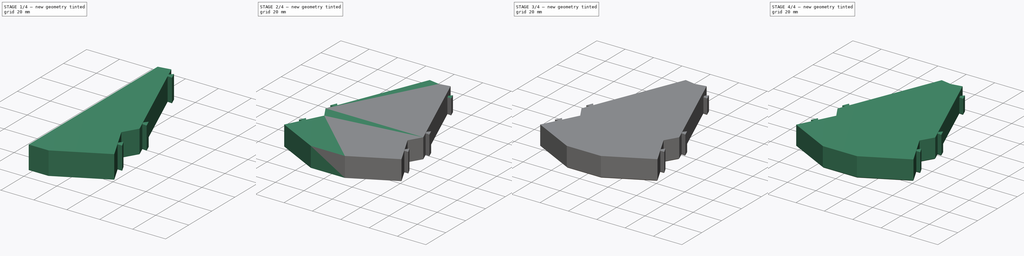
[diagram: build sequence overview — one tinted view per stage of 4, left to right]
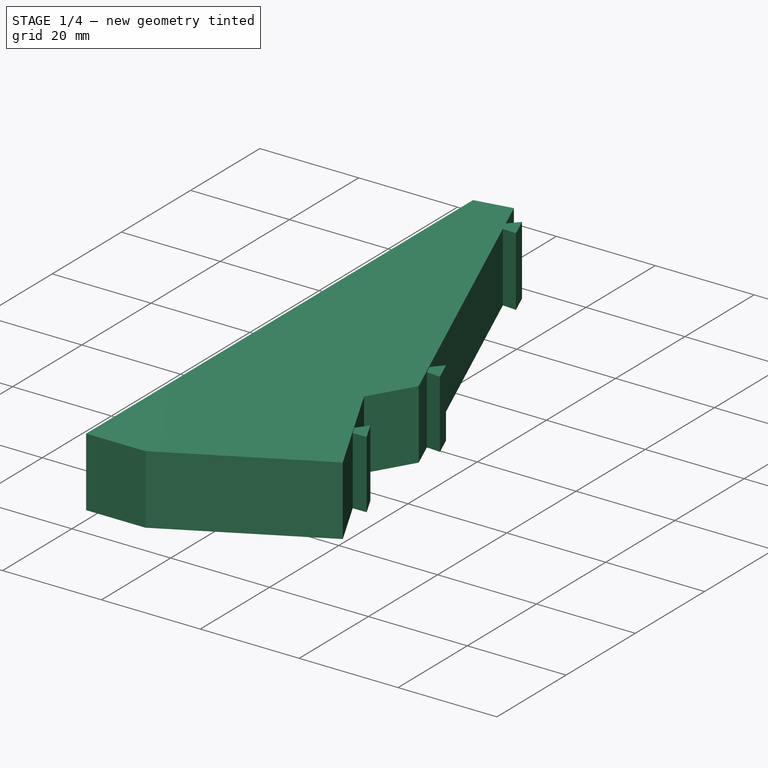
[diagram: stage 1 of 4 — iso view after this stage's code; geometry added in this stage tinted green]
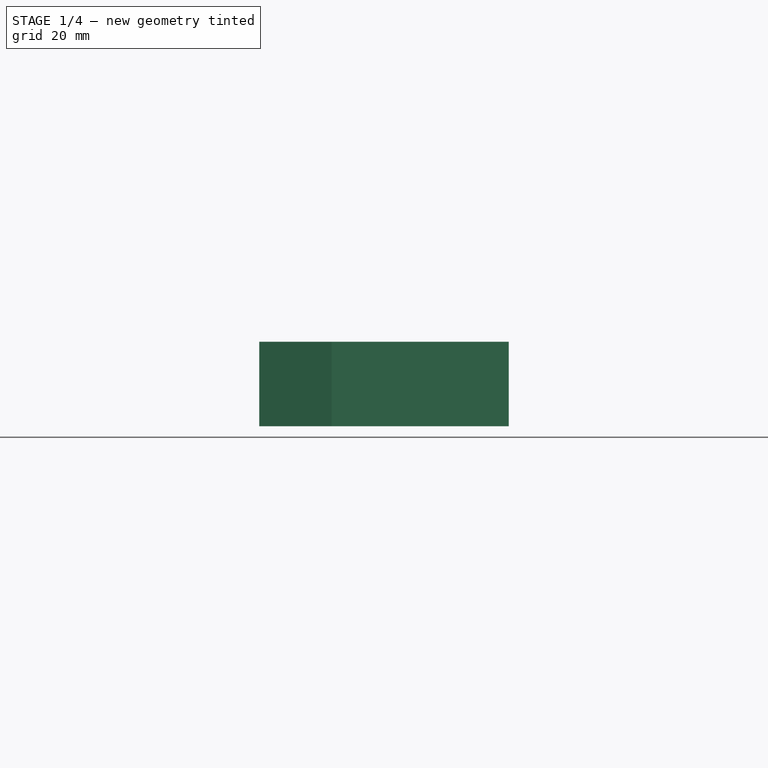
[diagram: stage 1 of 4 — front view after this stage's code; geometry added in this stage tinted green]
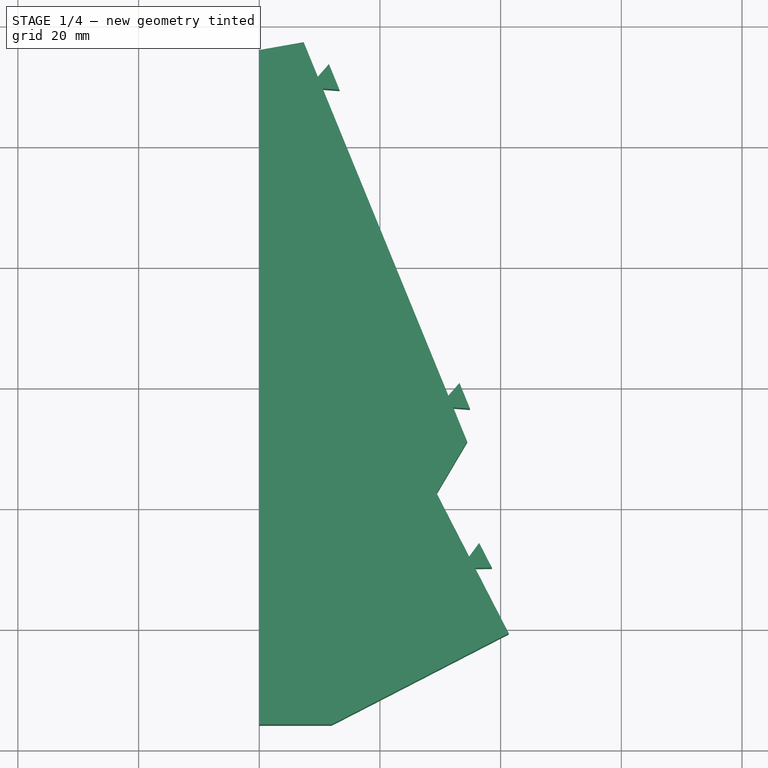
[diagram: stage 1 of 4 — top view after this stage's code; geometry added in this stage tinted green]
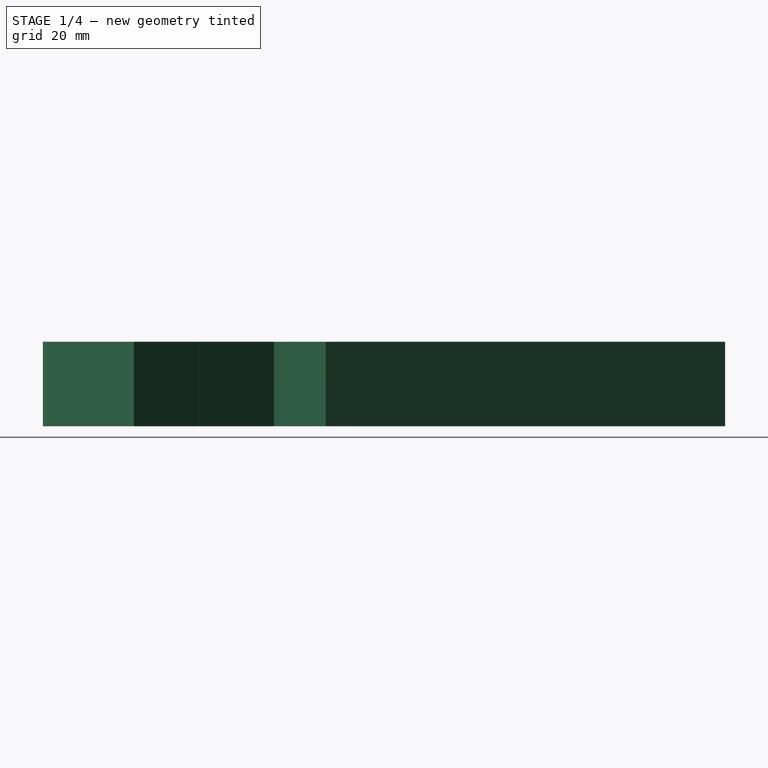
[diagram: stage 1 of 4 — right view after this stage's code; geometry added in this stage tinted green]
FCSTD DOCUMENT  (FreeCAD 1.0R39285 (Git))
Label: cinque-1.0-connector-t
License: All rights reserved
LicenseURL: https://en.wikipedia.org/wiki/All_rights_reserved
objects: Sketcher::SketchObject×6, PartDesign::Pocket×2, PartDesign::Fillet×2, PartDesign::Chamfer×2, PartDesign::Pad×1, PartDesign::Mirrored×1, PartDesign::SubtractiveLoft×1, PartDesign::Body×1
note: 39 computed .brp shape members not serialized (recipe doc carries the construction recipe); baked Part::Feature solids carry a one-line shape summary decoded from their .brp

FEATURE [Sketcher::SketchObject] Sketch021  label="Right Board"
  ArcFitTolerance = 1e-06
  AttachmentOffset = pos=(-6.74,0,0) rot=(0,0,1;0.122173rad)
  AttachmentSupport = -> [XY_Plane]
  FullyConstrained = true
  MakeInternals = false
  MapMode = 5
  Placement = pos=(-6.74,0,0) rot=(0,0,1;0.122173rad)
  sketch-geometry (35):
    g0: LineSegment StartX=16.2394 StartY=15.4165 StartZ=0 EndX=17.8054 EndY=9.6763 EndZ=0
    g1: LineSegment StartX=17.8054 StartY=9.6763 StartZ=0 EndX=19.8883 EndY=11.5402 EndZ=0
    g2: LineSegment StartX=19.8883 StartY=11.5402 StartZ=0 EndX=21.2306 EndY=6.62006 EndZ=0
    g3: LineSegment StartX=21.2306 StartY=6.62006 StartZ=0 EndX=18.4898 EndY=7.16798 EndZ=0
    g4: LineSegment StartX=18.4898 StartY=7.16798 StartZ=0 EndX=32.8352 EndY=-45.4133 EndZ=0
    g5: LineSegment StartX=32.8352 StartY=-45.4133 StartZ=0 EndX=34.9181 EndY=-43.5494 EndZ=0
    g6: LineSegment StartX=34.9181 StartY=-43.5494 StartZ=0 EndX=36.2604 EndY=-48.4695 EndZ=0
    g7: LineSegment StartX=36.2604 StartY=-48.4695 StartZ=0 EndX=33.5196 EndY=-47.9216 EndZ=0
    g8: LineSegment StartX=33.5196 StartY=-47.9216 StartZ=0 EndX=35.0856 EndY=-53.6618 EndZ=0
    g9: LineSegment StartX=35.0856 StartY=-53.6618 StartZ=0 EndX=29.0135 EndY=-61.5422 EndZ=0
    g10: LineSegment StartX=29.0135 StartY=-61.5422 StartZ=0 EndX=32.9844 EndY=-72.3026 EndZ=0
    g11: LineSegment StartX=32.9844 StartY=-72.3026 StartZ=0 EndX=34.8971 EndY=-70.2644 EndZ=0
    g12: LineSegment StartX=34.8971 StartY=-70.2644 StartZ=0 EndX=36.6627 EndY=-75.049 EndZ=0
    g13: LineSegment StartX=36.6627 StartY=-75.049 StartZ=0 EndX=33.8846 EndY=-74.7418 EndZ=0
    g14: LineSegment StartX=33.8846 StartY=-74.7418 StartZ=0 EndX=38.0217 EndY=-85.9528 EndZ=0
    g15: LineSegment StartX=38.0217 StartY=-85.9528 StartZ=0 EndX=63.9413 EndY=-76.6823 EndZ=0
    g16: LineSegment StartX=63.9413 StartY=-76.6823 StartZ=0 EndX=61.9224 EndY=-74.7493 EndZ=0
    g17: LineSegment StartX=61.9224 StartY=-74.7493 StartZ=0 EndX=66.7245 EndY=-73.0317 EndZ=0
    g18: LineSegment StartX=66.7245 StartY=-73.0317 StartZ=0 EndX=66.3895 EndY=-75.8066 EndZ=0
    g19: LineSegment StartX=66.3895 StartY=-75.8066 StartZ=0 EndX=92.3091 EndY=-66.5361 EndZ=0
    g20: LineSegment StartX=92.3091 StartY=-66.5361 StartZ=0 EndX=128.014 EndY=-51.2943 EndZ=0
    g21: LineSegment StartX=128.014 StartY=-51.2943 StartZ=0 EndX=125.883 EndY=-49.4858 EndZ=0
    g22: LineSegment StartX=125.883 StartY=-49.4858 StartZ=0 EndX=130.574 EndY=-47.4836 EndZ=0
    g23: LineSegment StartX=130.574 StartY=-47.4836 StartZ=0 EndX=130.406 EndY=-50.2736 EndZ=0
    g24: LineSegment StartX=130.406 StartY=-50.2736 StartZ=0 EndX=166.111 EndY=-35.0318 EndZ=0
    g25: LineSegment StartX=167.763 StartY=-32.1537 StartZ=0 EndX=162.807 EndY=21.9215 EndZ=0
    g26: LineSegment StartX=161.439 StartY=24.121 StartZ=0 EndX=141.847 EndY=35.9891 EndZ=0
    g27: LineSegment StartX=141.847 StartY=35.9891 StartZ=0 EndX=115.751 EndY=43.3614 EndZ=0
    g28: LineSegment StartX=115.751 StartY=43.3614 StartZ=0 EndX=95.7425 EndY=47.1481 EndZ=0
    g29: LineSegment StartX=95.7425 StartY=47.1481 StartZ=0 EndX=76.8905 EndY=43.9433 EndZ=0
    g30: LineSegment StartX=76.8905 StartY=43.9433 StartZ=0 EndX=36.0729 EndY=24.9987 EndZ=0
    g31: LineSegment StartX=36.0729 StartY=24.9987 StartZ=0 EndX=31.3759 EndY=19.3864 EndZ=0
    g32: LineSegment StartX=31.3759 StartY=19.3864 StartZ=0 EndX=16.2394 EndY=15.4165 EndZ=0
    g33: ArcOfCircle CenterX=159.666 CenterY=21.4937 CenterZ=0 NormalX=0 NormalY=0 NormalZ=1 AngleXU=0 Radius=3.17 StartAngle=0.135278 EndAngle=0.976936
    g34: ArcOfCircle CenterX=164.363 CenterY=-32.1153 CenterZ=0 NormalX=0 NormalY=0 NormalZ=1 AngleXU=0 Radius=3.4 StartAngle=5.25178 EndAngle=6.27191
  constraints (72):
    c: Coincident(g-38,g0)
    c: Coincident(g0,g-4)
    c: Coincident(g0,g1)
    c: Coincident(g1,g-5)
    c: Coincident(g1,g2)
    c: Coincident(g2,g-6)
    c: Coincident(g2,g3)
    c: Coincident(g3,g-7)
    c: Coincident(g3,g4)
    c: Coincident(g4,g-8)
    c: Coincident(g4,g5)
    c: Coincident(g5,g-9)
    c: Coincident(g5,g6)
    c: Coincident(g6,g-10)
    c: Coincident(g6,g7)
    c: Coincident(g7,g-11)
    c: Coincident(g7,g8)
    c: Coincident(g8,g-12)
    c: Coincident(g8,g9)
    c: Coincident(g9,g-13)
    c: Coincident(g9,g10)
    c: Coincident(g10,g-13)
    c: Coincident(g10,g11)
    c: Coincident(g11,g-14)
    c: Coincident(g11,g12)
    c: Coincident(g12,g-16)
    c: Coincident(g12,g13)
    c: Coincident(g13,g-17)
    c: Coincident(g13,g14)
    c: Coincident(g14,g-18)
    c: Coincident(g14,g15)
    c: Coincident(g15,g-19)
    c: Coincident(g15,g16)
    c: Coincident(g16,g-20)
    c: Coincident(g16,g17)
    c: Coincident(g17,g-21)
    c: Coincident(g17,g18)
    c: Coincident(g18,g-22)
    c: Coincident(g18,g19)
    c: Coincident(g19,g-23)
    c: Coincident(g19,g20)
    c: Coincident(g20,g-24)
    c: Coincident(g20,g21)
    c: Coincident(g21,g-25)
    c: Coincident(g21,g22)
    c: Coincident(g22,g-26)
    c: Coincident(g22,g23)
    c: Coincident(g23,g-27)
    c: Coincident(g23,g24)
    c: Coincident(g24,g-28)
    c: Coincident(g-29,g25)
    c: Coincident(g25,g-31)
    c: Coincident(g-32,g26)
    c: Coincident(g26,g-33)
    c: Coincident(g26,g27)
    c: Coincident(g27,g-34)
    c: Coincident(g27,g28)
    c: Coincident(g28,g-35)
    c: Coincident(g28,g29)
    c: Coincident(g29,g-36)
    c: Coincident(g29,g30)
    c: Coincident(g30,g-37)
    c: Coincident(g30,g31)
    c: Coincident(g31,g-38)
    c: Coincident(g31,g32)
    c: Coincident(g32,g0)
    c: Coincident(g33,g-31)
    c: Coincident(g33,g26)
    c: Coincident(g34,g-28)
    c: Coincident(g34,g25)
    c: Distance(g25,g34) = 3.32
    c: Distance(g26,g33) = 2.59
FEATURE [Sketcher::SketchObject] Sketch  label="Housing"
  ArcFitTolerance = 1e-06
  AttachmentSupport = -> [XY_Plane]
  ExternalGeometry = -> [Sketch021]
  FullyConstrained = true
  MakeInternals = false
  MapMode = 5
  sketch-geometry (21):
    g0: LineSegment StartX=0 StartY=15.926 StartZ=0 EndX=7.36069 EndY=17.2238 EndZ=0
    g1: LineSegment StartX=7.36069 StartY=17.2238 StartZ=0 EndX=9.70658 EndY=11.4927 EndZ=0
    g2: LineSegment StartX=9.70658 StartY=11.4927 StartZ=0 EndX=11.5467 EndY=13.5965 EndZ=0
    g3: LineSegment StartX=11.5467 StartY=13.5965 StartZ=0 EndX=13.2948 EndY=9.32587 EndZ=0
    g4: LineSegment StartX=13.2948 StartY=9.32587 StartZ=0 EndX=10.5076 EndY=9.53568 EndZ=0
    g5: LineSegment StartX=10.5076 StartY=9.53568 StartZ=0 EndX=31.3381 EndY=-41.3546 EndZ=0
    g6: LineSegment StartX=31.3381 StartY=-41.3546 StartZ=0 EndX=33.1783 EndY=-39.2508 EndZ=0
    g7: LineSegment StartX=33.1783 StartY=-39.2508 StartZ=0 EndX=34.9263 EndY=-43.5214 EndZ=0
    g8: LineSegment StartX=34.9263 StartY=-43.5214 StartZ=0 EndX=32.1391 EndY=-43.3116 EndZ=0
    g9: LineSegment StartX=32.1391 StartY=-43.3116 StartZ=0 EndX=34.4568 EndY=-48.9738 EndZ=0
    g10: LineSegment StartX=34.4568 StartY=-48.9738 StartZ=0 EndX=29.386 EndY=-57.5426 EndZ=0
    g11: LineSegment StartX=29.386 StartY=-57.5426 StartZ=0 EndX=34.7878 EndY=-68.0283 EndZ=0
    g12: LineSegment StartX=34.7878 StartY=-68.0283 StartZ=0 EndX=36.4378 EndY=-65.7722 EndZ=0
    g13: LineSegment StartX=36.4378 StartY=-65.7722 StartZ=0 EndX=38.5511 EndY=-69.8745 EndZ=0
    g14: LineSegment StartX=38.5511 StartY=-69.8745 StartZ=0 EndX=35.7562 EndY=-69.9082 EndZ=0
    g15: LineSegment StartX=35.7562 StartY=-69.9082 StartZ=0 EndX=41.34 EndY=-80.7472 EndZ=0
    g16: LineSegment StartX=41.34 StartY=-80.7472 StartZ=0 EndX=12 EndY=-95.8618 EndZ=0
    g17: LineSegment StartX=12 StartY=-95.8618 StartZ=0 EndX=0 EndY=-95.8618 EndZ=0
    g18: LineSegment StartX=0 StartY=-95.8618 StartZ=0 EndX=0 EndY=15.926 EndZ=0
    g19: LineSegment [constr] StartX=7.49951 StartY=17.2807 StartZ=0 EndX=6.57404 EndY=16.9019 EndZ=0
    g20: LineSegment [constr] StartX=41.4733 StartY=-80.6785 StartZ=0 EndX=40.5844 EndY=-81.1364 EndZ=0
  constraints (63):
    c: PointOnObject(g0,g-2)
    c: Coincident(g0,g1)
    c: Coincident(g1,g2)
    c: Coincident(g2,g3)
    c: Coincident(g3,g4)
    c: Coincident(g4,g5)
    c: Coincident(g5,g6)
    c: Coincident(g6,g7)
    c: Coincident(g7,g8)
    c: Coincident(g8,g9)
    c: Coincident(g9,g10)
    c: Coincident(g10,g11)
    c: Coincident(g11,g12)
    c: Coincident(g12,g13)
    c: Coincident(g13,g14)
    c: Coincident(g14,g15)
    c: Coincident(g15,g16)
    c: Coincident(g16,g17)
    c: PointOnObject(g17,g-2)
    c: Coincident(g17,g18)
    c: Coincident(g18,g0)
    c: Parallel(g-4,g1)
    c: Parallel(g2,g-5)
    c: Parallel(g-6,g3)
    c: Parallel(g4,g-7)
    c: Parallel(g-8,g5)
    c: Distance(g-4,g1) = 0.15
    c: Distance(g-5,g2) = 0.15
    c: Distance(g-6,g3) = 0.15
    c: Distance(g-7,g4) = 0.15
    c: Distance(g-8,g5) = 0.15
    c: Parallel(g-9,g6)
    c: Parallel(g7,g-10)
    c: Parallel(g8,g-11)
    c: Parallel(g9,g-12)
    c: Distance(g-9,g6) = 0.15
    c: Distance(g-10,g7) = 0.15
    c: Distance(g-11,g8) = 0.15
    c: Distance(g-12,g9) = 0.15
    c: Parallel(g10,g-13)
    c: Parallel(g11,g-14)
    c: Distance(g10,g-13) = 0.15
    c: Distance(g-14,g11) = 0.15
    c: Parallel(g12,g-15)
    c: Parallel(g13,g-16)
    c: Parallel(g14,g-17)
    c: Parallel(g15,g-18)
    c: Distance(g-15,g12) = 0.15
    c: Distance(g-17,g14) = 0.15
    c: Distance(g-16,g13) = 0.15
    c: Distance(g-18,g15) = 0.15
    c: Distance(g19) = 1
    c: Coincident(g19,g-4)
    c: Perpendicular(g-4,g19)
    c: PointOnObject(g0,g19)
    c: Angle(g-2,g0) = 1.74533
    c: Coincident(g20,g-19)
    c: Perpendicular(g20,g-18)
    c: PointOnObject(g15,g20)
    c: Horizontal(g17)
    c: DistanceX(g17,g17) = 12
    c: Perpendicular(g15,g16)
    c: Distance(g20,g20) = 1
FEATURE [PartDesign::Pad] Pad
  Direction = (0,0,1)
  Length = 14
  Length2 = 10
  Profile = -> Sketch
  ReferenceAxis = -> Sketch [N_Axis]
  Refine = true
  Suppressed = false
  Type = 0
FEATURE [Sketcher::SketchObject] Sketch022  label="Dovetails Tall"
  ArcFitTolerance = 1e-06
  AttachmentOffset = pos=(0,0,13.75) rot=(0,0,1;0rad)
  AttachmentSupport = -> [XY_Plane]
  FullyConstrained = true
  MakeInternals = false
  MapMode = 5
  Placement = pos=(0,0,13.75) rot=(0,0,1;0rad)
  sketch-geometry (8):
    g0: LineSegment StartX=31.3381 StartY=-41.3546 StartZ=0 EndX=33.1783 EndY=-39.2508 EndZ=0
    g1: LineSegment StartX=33.1783 StartY=-39.2508 StartZ=0 EndX=34.9263 EndY=-43.5214 EndZ=0
    g2: LineSegment StartX=34.9263 StartY=-43.5214 StartZ=0 EndX=32.1391 EndY=-43.3116 EndZ=0
    g3: LineSegment StartX=32.1391 StartY=-43.3116 StartZ=0 EndX=31.3381 EndY=-41.3546 EndZ=0
    g4: LineSegment StartX=34.7878 StartY=-68.0283 StartZ=0 EndX=36.4378 EndY=-65.7722 EndZ=0
    g5: LineSegment StartX=36.4378 StartY=-65.7722 StartZ=0 EndX=38.5511 EndY=-69.8745 EndZ=0
    g6: LineSegment StartX=38.5511 StartY=-69.8745 StartZ=0 EndX=35.7562 EndY=-69.9082 EndZ=0
    g7: LineSegment StartX=35.7562 StartY=-69.9082 StartZ=0 EndX=34.7878 EndY=-68.0283 EndZ=0
  constraints (16):
    c: Coincident(g-5,g0)
    c: Coincident(g0,g-5)
    c: Coincident(g0,g1)
    c: Coincident(g1,g-6)
    c: Coincident(g1,g2)
    c: Coincident(g2,g-6)
    c: Coincident(g2,g3)
    c: Coincident(g3,g0)
    c: Coincident(g-3,g4)
    c: Coincident(g4,g-3)
    c: Coincident(g4,g5)
    c: Coincident(g5,g-4)
    c: Coincident(g5,g6)
    c: Coincident(g6,g-4)
    c: Coincident(g6,g7)
    c: Coincident(g7,g4)
FEATURE [PartDesign::Pocket] Pocket
  BaseFeature = -> Pad
  Direction = (0,0,-1)
  Length = 5
  Length2 = 5
  Profile = -> Sketch022
  ReferenceAxis = -> Sketch022 [N_Axis]
  Refine = true
  Reversed = true
  Suppressed = false
  Type = 1
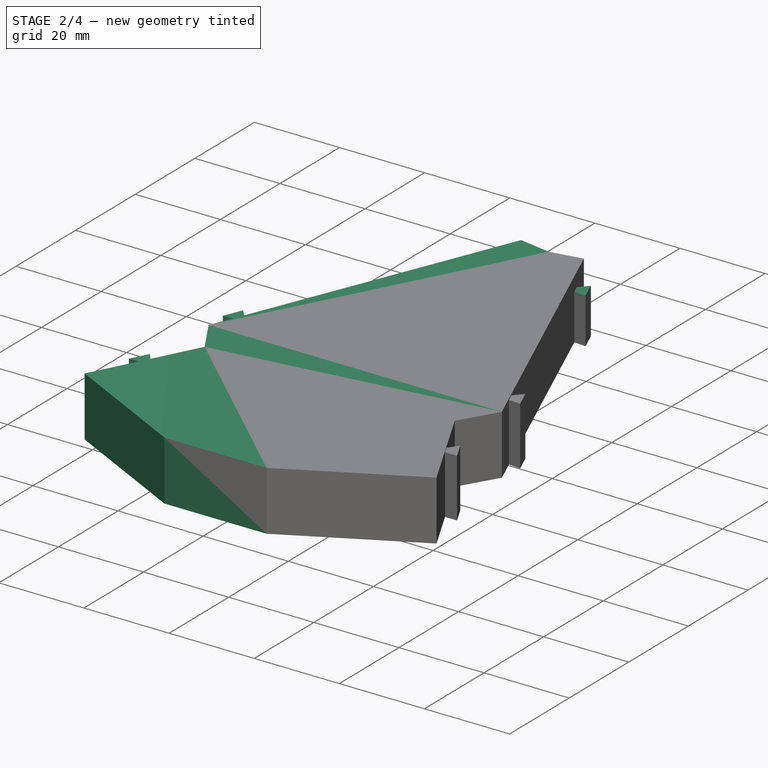
[diagram: stage 2 of 4 — iso view after this stage's code; geometry added in this stage tinted green]
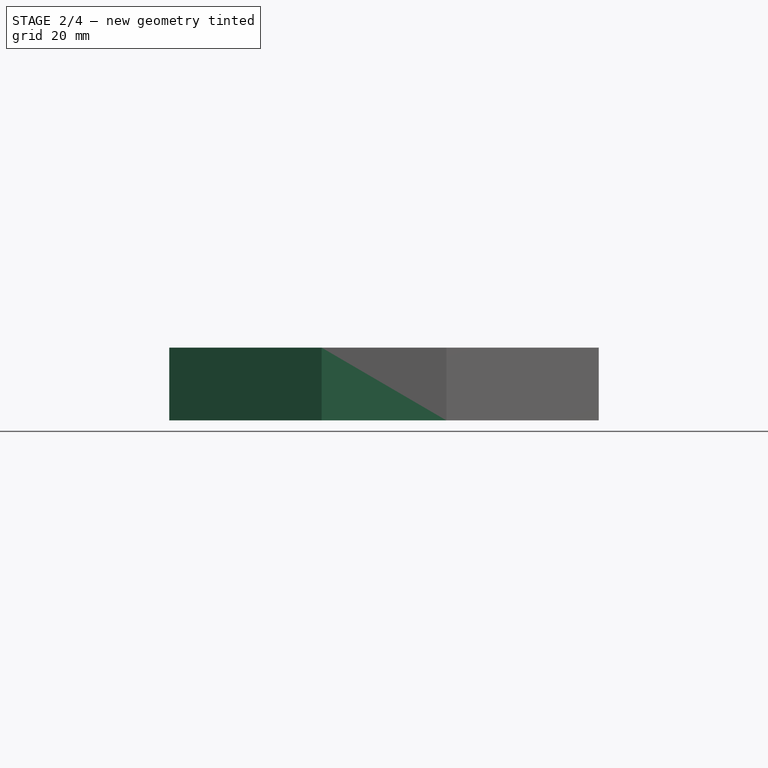
[diagram: stage 2 of 4 — front view after this stage's code; geometry added in this stage tinted green]
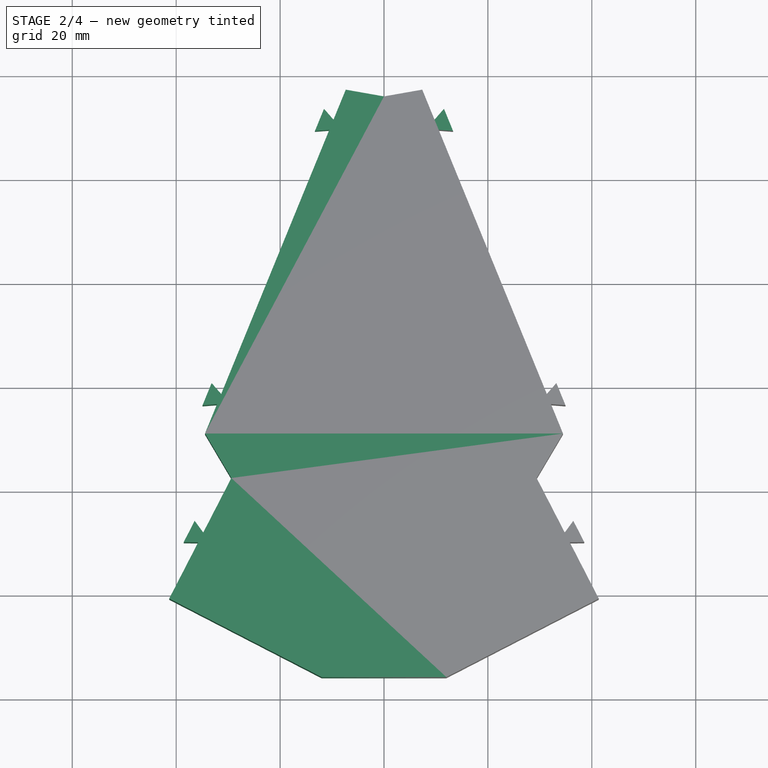
[diagram: stage 2 of 4 — top view after this stage's code; geometry added in this stage tinted green]
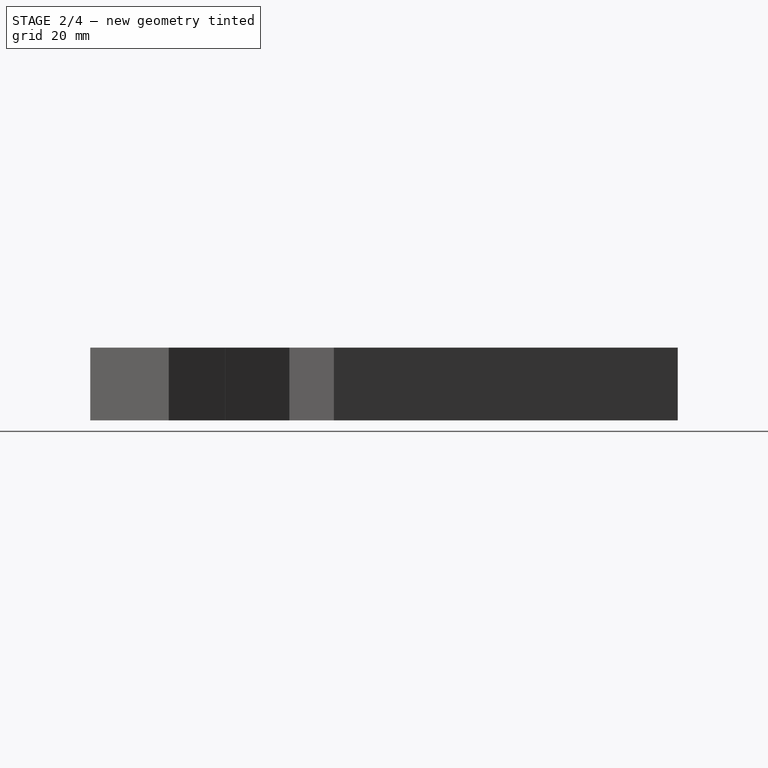
[diagram: stage 2 of 4 — right view after this stage's code; geometry added in this stage tinted green]
FEATURE [Sketcher::SketchObject] Sketch023  label="Dovetails Short"
  ArcFitTolerance = 1e-06
  AttachmentOffset = pos=(0,0,10.75) rot=(0,0,1;0rad)
  AttachmentSupport = -> [XY_Plane]
  FullyConstrained = true
  MakeInternals = false
  MapMode = 5
  Placement = pos=(0,0,10.75) rot=(0,0,1;0rad)
  sketch-geometry (4):
    g0: LineSegment StartX=9.70658 StartY=11.4927 StartZ=0 EndX=11.5467 EndY=13.5965 EndZ=0
    g1: LineSegment StartX=11.5467 StartY=13.5965 StartZ=0 EndX=13.2948 EndY=9.32587 EndZ=0
    g2: LineSegment StartX=13.2948 StartY=9.32587 StartZ=0 EndX=10.5076 EndY=9.53568 EndZ=0
    g3: LineSegment StartX=10.5076 StartY=9.53568 StartZ=0 EndX=9.70658 EndY=11.4927 EndZ=0
  constraints (8):
    c: Coincident(g-3,g0)
    c: Coincident(g0,g-3)
    c: Coincident(g0,g1)
    c: Coincident(g1,g-4)
    c: Coincident(g1,g2)
    c: Coincident(g2,g-4)
    c: Coincident(g2,g3)
    c: Coincident(g3,g0)
FEATURE [PartDesign::Pocket] Pocket001
  BaseFeature = -> Pocket
  Direction = (0,0,-1)
  Length = 5
  Length2 = 5
  Profile = -> Sketch023
  ReferenceAxis = -> Sketch023 [N_Axis]
  Refine = true
  Reversed = true
  Suppressed = false
  Type = 1
FEATURE [PartDesign::Mirrored] Mirrored
  BaseFeature = -> Pocket001
  MirrorPlane = -> YZ_Plane
  Refine = true
  Suppressed = false
  TransformMode = 1
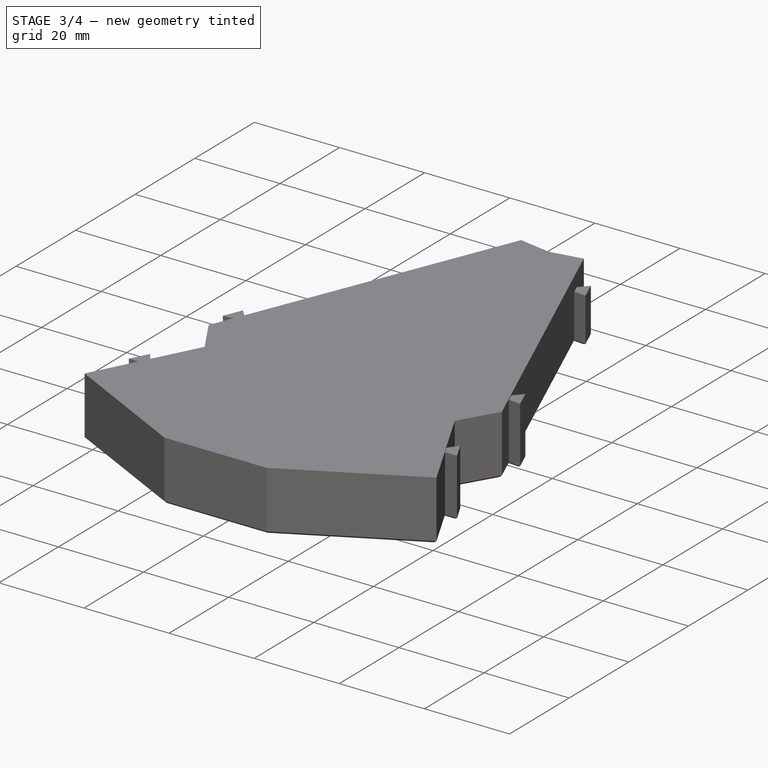
[diagram: stage 3 of 4 — iso view after this stage's code; geometry added in this stage tinted green]
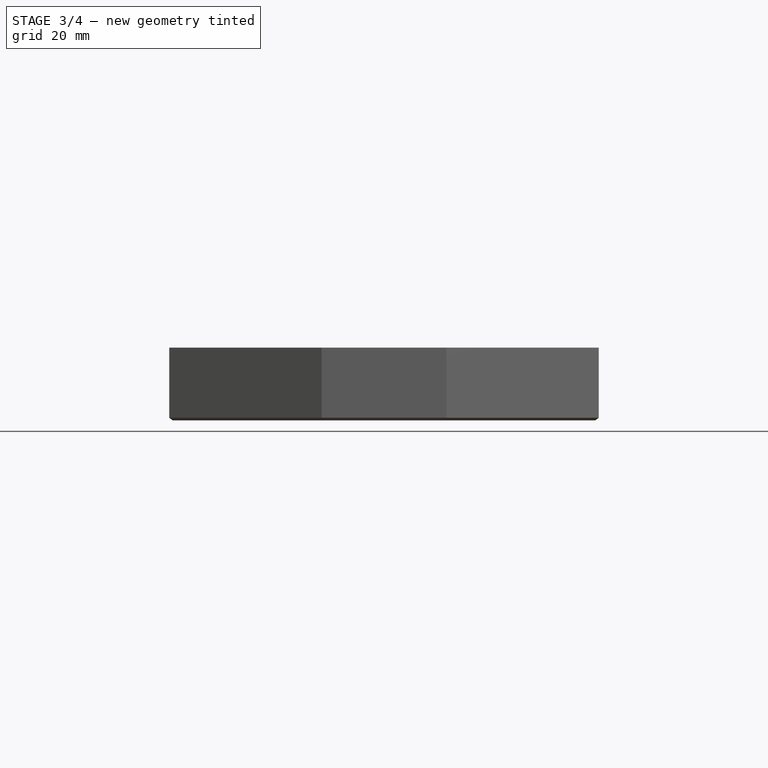
[diagram: stage 3 of 4 — front view after this stage's code; geometry added in this stage tinted green]
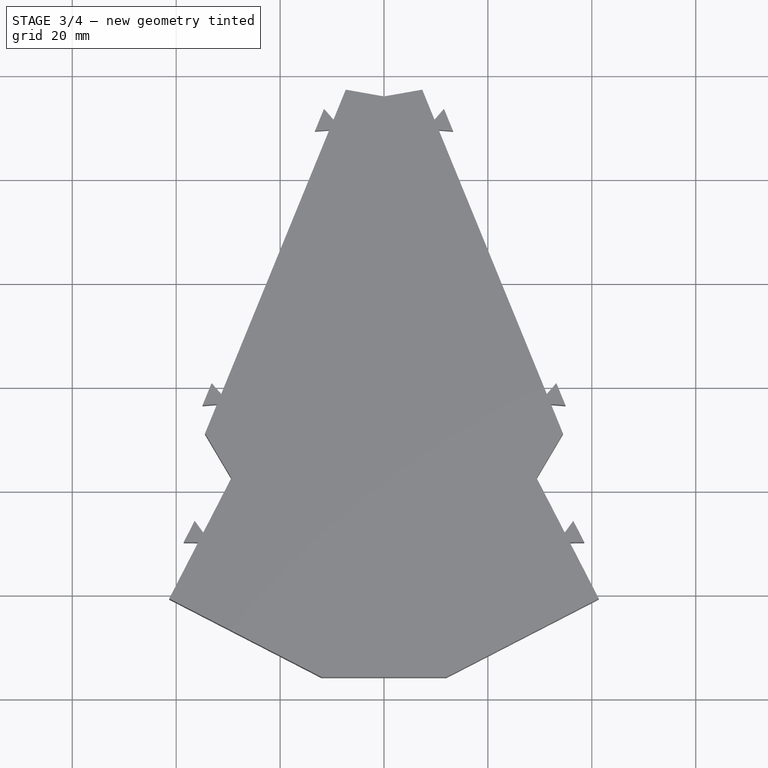
[diagram: stage 3 of 4 — top view after this stage's code; geometry added in this stage tinted green]
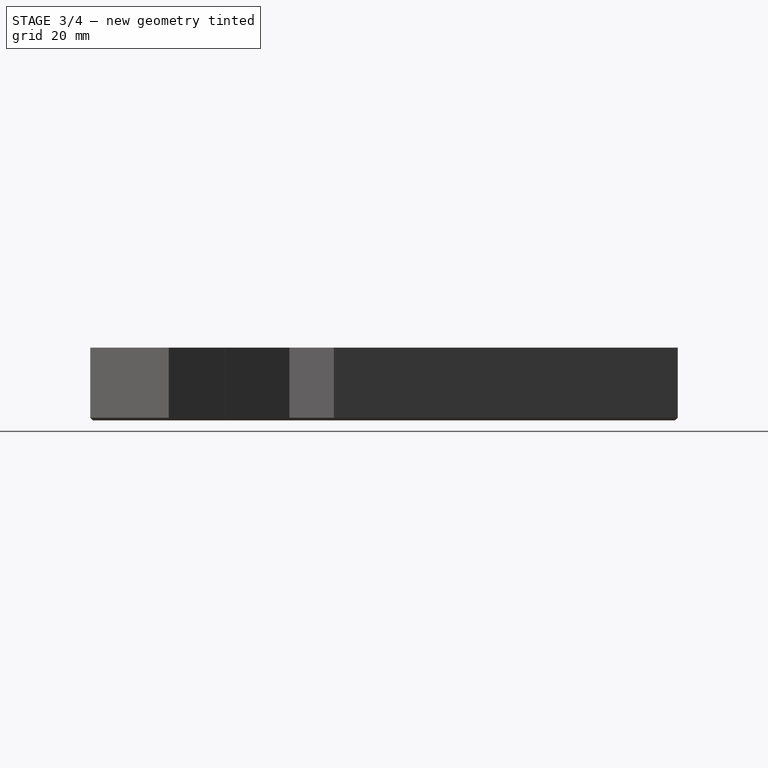
[diagram: stage 3 of 4 — right view after this stage's code; geometry added in this stage tinted green]
FEATURE [Sketcher::SketchObject] Sketch049  label="Ribbon Cutout"
  ArcFitTolerance = 1e-06
  AttachmentSupport = -> [Mirrored]
  ExternalGeometry = -> [Mirrored]
  FullyConstrained = true
  MakeInternals = false
  MapMode = 5
  Placement = pos=(-12.3428,5.05217,2.25e-14) rot=(-0.428774,0.638809,0.638809;3.95172rad)
  sketch-geometry (4):
    g0: LineSegment StartX=0.0892873 StartY=13.4 StartZ=0 EndX=14.1703 EndY=13.4 EndZ=0
    g1: LineSegment StartX=14.1703 StartY=13.4 StartZ=0 EndX=14.5109 EndY=10.24 EndZ=0
    g2: LineSegment StartX=14.5109 StartY=10.24 StartZ=0 EndX=0.591464 EndY=8.74 EndZ=0
    g3: LineSegment StartX=0.591464 StartY=8.74 StartZ=0 EndX=0.0892873 EndY=13.4 EndZ=0
  constraints (12):
    c: Coincident(g0,g1)
    c: Coincident(g1,g2)
    c: Coincident(g2,g3)
    c: Coincident(g3,g0)
    c: Parallel(g3,g1)
    c: Distance(g2,g-3) = 19.32
    c: Distance(g2,g2) = 14
    c: Distance(g2,g-4) = 5.26
    c: Perpendicular(g1,g2)
    c: Distance(g1,g-4) = 3.76
    c: Parallel(g-4,g0)
    c: Distance(g0,g-4) = 0.6
FEATURE [Sketcher::SketchObject] Sketch050  label="Ribbon Hollow"
  ArcFitTolerance = 1e-06
  AttachmentOffset = pos=(0,0,-28) rot=(0,0,1;0rad)
  AttachmentSupport = -> [Mirrored]
  ExternalGeometry = -> [Mirrored]
  FullyConstrained = true
  MakeInternals = false
  MapMode = 5
  Placement = pos=(13.5704,-5.55465,-1.94e-14) rot=(-0.428774,0.638809,0.638809;3.95172rad)
  sketch-geometry (4):
    g0: LineSegment StartX=0.0914637 StartY=9 StartZ=0 EndX=15.0925 EndY=9 EndZ=0
    g1: LineSegment StartX=15.0925 StartY=9 StartZ=0 EndX=14.999 EndY=1 EndZ=0
    g2: LineSegment StartX=14.999 StartY=1 StartZ=0 EndX=0 EndY=1.17533 EndZ=0
    g3: LineSegment StartX=0 StartY=1.17533 StartZ=0 EndX=0.0914637 EndY=9 EndZ=0
  constraints (12):
    c: Coincident(g0,g1)
    c: Coincident(g1,g2)
    c: Coincident(g2,g3)
    c: Coincident(g3,g0)
    c: Parallel(g3,g1)
    c: Distance(g2,g2) = 15
    c: Perpendicular(g1,g2)
    c: Parallel(g-4,g0)
    c: Distance(g0,g-4) = 5
    c: Distance(g0,g-3) = 18.82
    c: DistanceY(g1,g1) = 8
    c: PointOnObject(g2,g-2)
FEATURE [PartDesign::SubtractiveLoft] SubtractiveLoft
  BaseFeature = -> Mirrored
  Closed = false
  Profile = -> Sketch049
  Refine = true
  Ruled = false
  Sections = -> [Sketch050]
  Suppressed = false
FEATURE [PartDesign::Fillet] Fillet
  Base = -> SubtractiveLoft [Edge64,Edge67,Edge66,Edge65]
  BaseFeature = -> SubtractiveLoft
  Radius = 0.3
  Refine = true
  SupportTransform = false
  Suppressed = false
  UseAllEdges = false
FEATURE [PartDesign::Chamfer] Chamfer
  Angle = 45
  Base = -> Fillet [Face11]
  BaseFeature = -> Fillet
  ChamferType = 0
  FlipDirection = false
  Refine = true
  Size = 0.5
  Size2 = 1
  SupportTransform = false
  Suppressed = false
  UseAllEdges = false
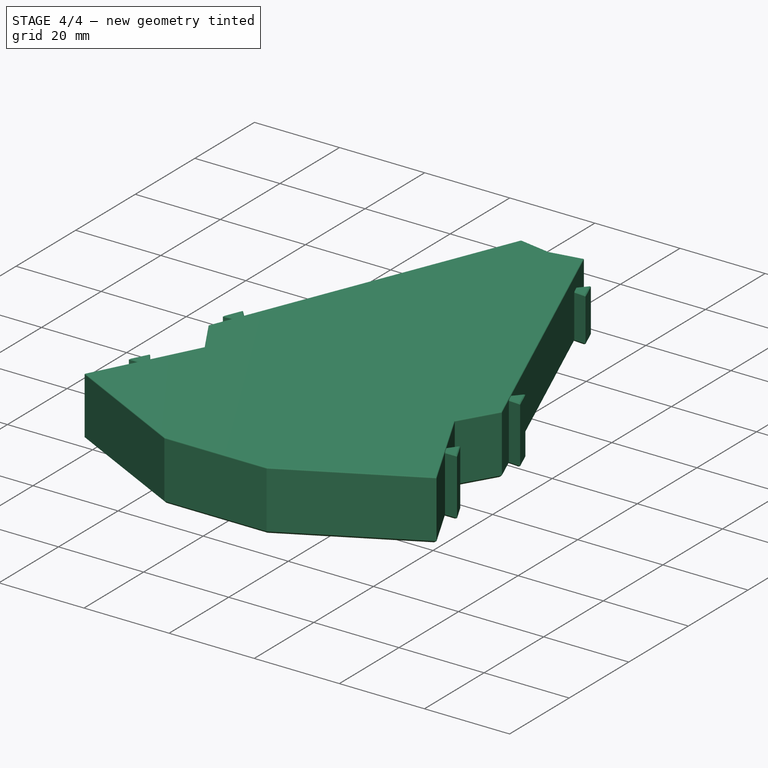
[diagram: stage 4 of 4 — iso view after this stage's code; geometry added in this stage tinted green]
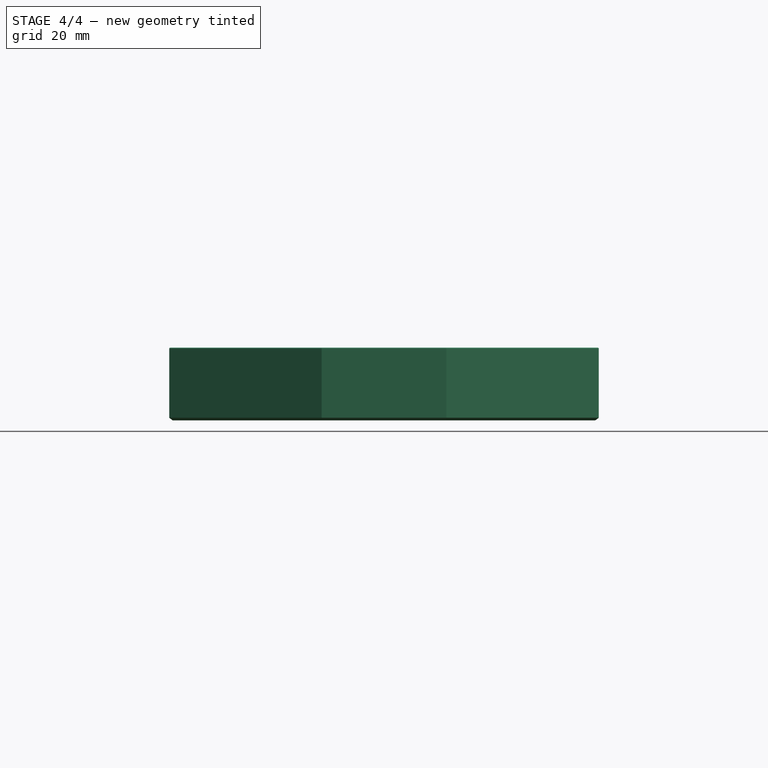
[diagram: stage 4 of 4 — front view after this stage's code; geometry added in this stage tinted green]
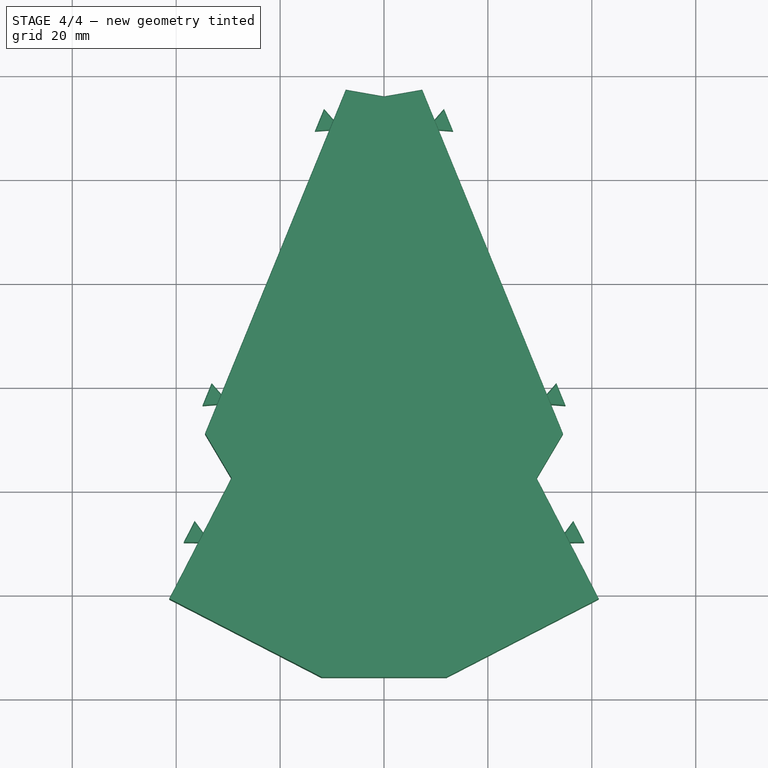
[diagram: stage 4 of 4 — top view after this stage's code; geometry added in this stage tinted green]
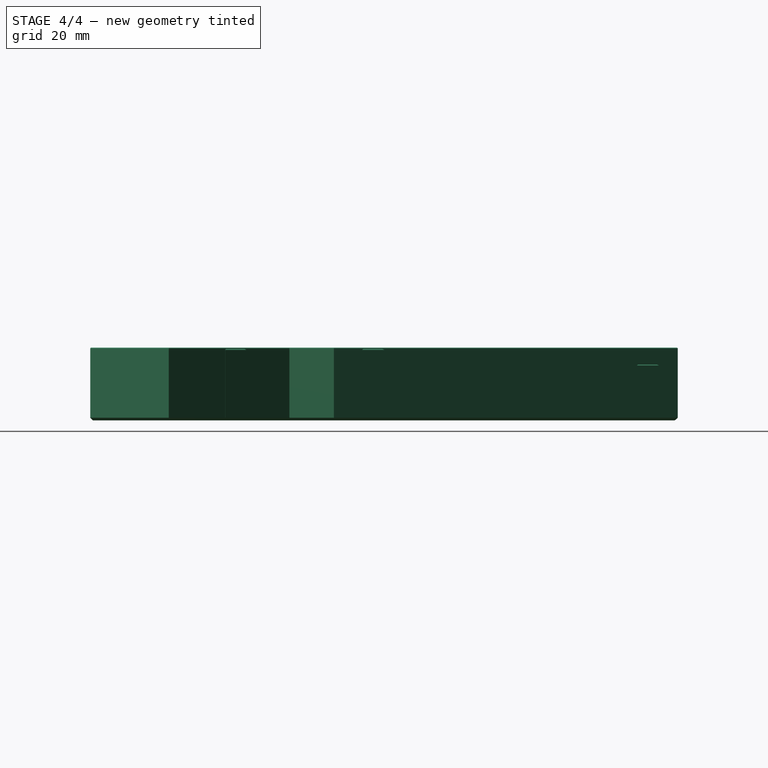
[diagram: stage 4 of 4 — right view after this stage's code; geometry added in this stage tinted green]
FEATURE [PartDesign::Fillet] Fillet001
  Base = -> Chamfer [Face4]
  BaseFeature = -> Chamfer
  Radius = 0.2
  Refine = true
  SupportTransform = false
  Suppressed = false
  UseAllEdges = false
FEATURE [PartDesign::Chamfer] Chamfer001
  Angle = 45
  Base = -> Fillet001 [Edge229,Edge228,Edge226,Edge207,Edge206,Edge205,Edge42,Edge47,Edge46,Edge214,Edge218,Edge217,Edge211,Edge212,Edge213,Edge35,Edge39,Edge40]
  BaseFeature = -> Fillet001
  ChamferType = 0
  FlipDirection = false
  Refine = true
  Size = 0.2
  Size2 = 1
  SupportTransform = false
  Suppressed = false
  UseAllEdges = false
FEATURE [PartDesign::Body] Body
  AllowCompound = false
  Group = -> [Sketch021,Sketch,Pad,Sketch022,Pocket,Sketch023,Pocket001,Mirrored,Sketch049,Sketch050,SubtractiveLoft,Fillet,Chamfer,Fillet001,Chamfer001]
  Origin = -> Origin
  Tip = -> Chamfer001
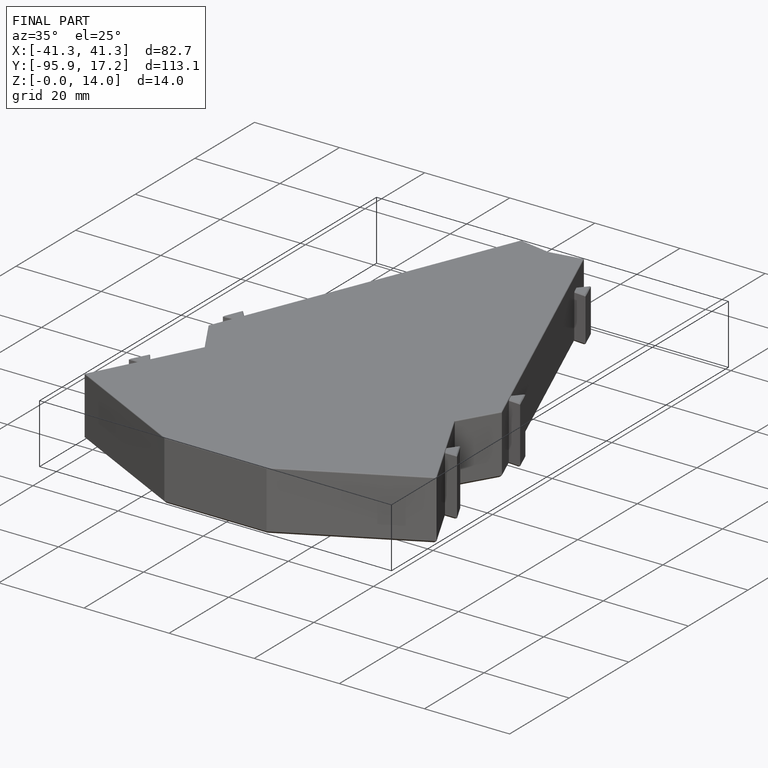
[diagram: finished part — iso view with bounding-box wireframe]
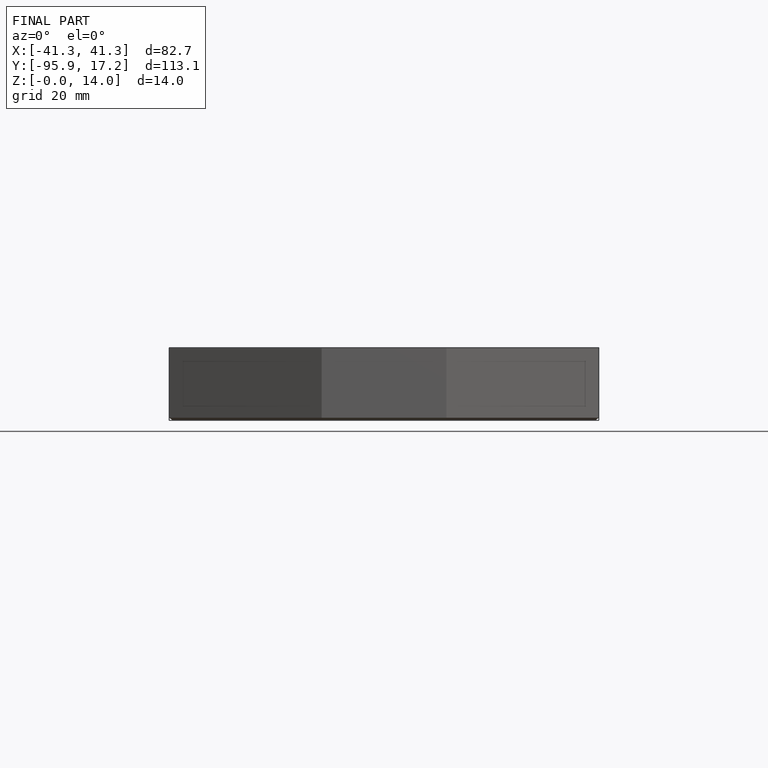
[diagram: finished part — front view with bounding-box wireframe]
